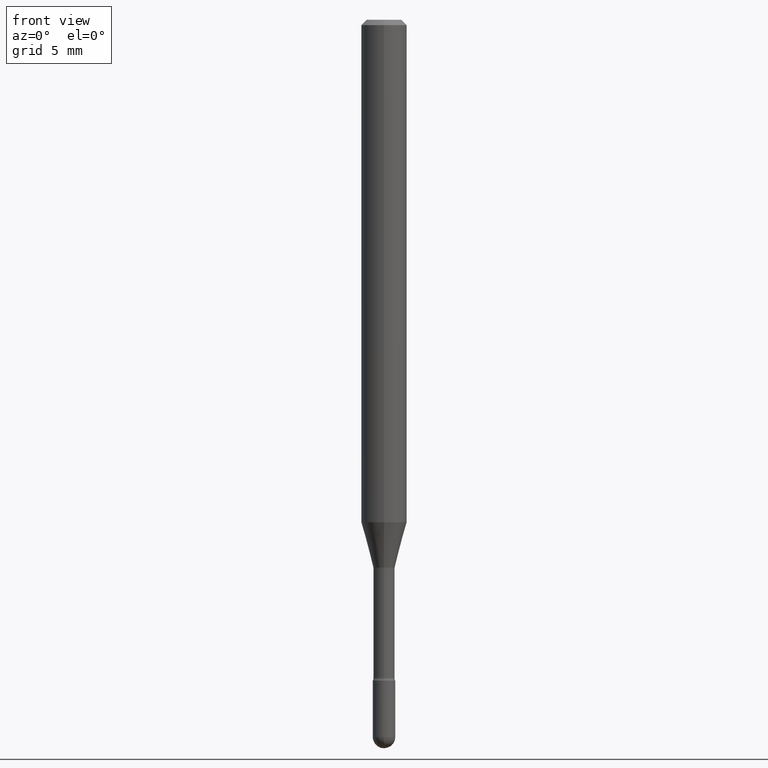
[diagram: clean part render]
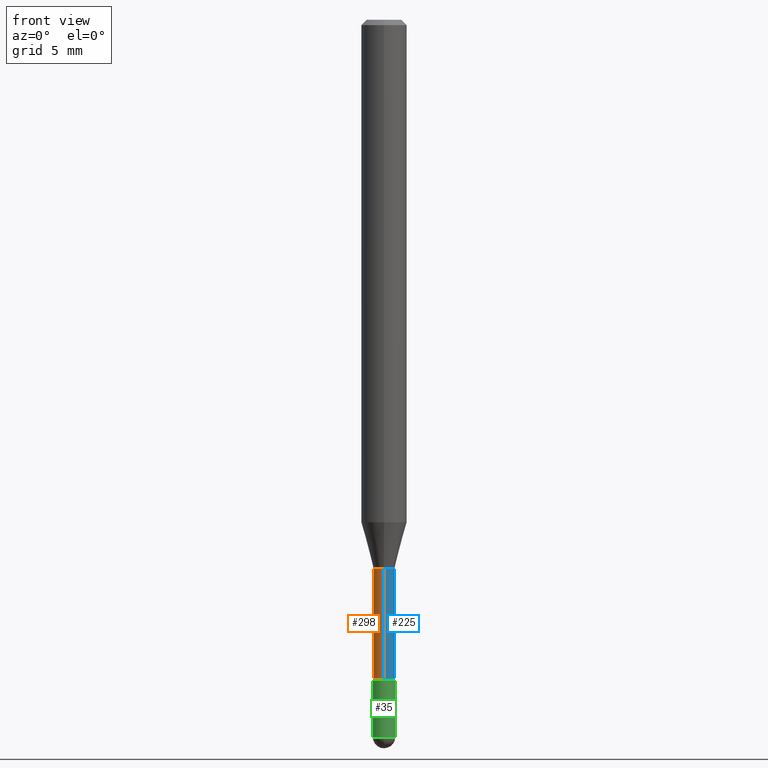
[diagram: same view with three faces highlighted in distinct colors, each labeled with its STEP entity id]
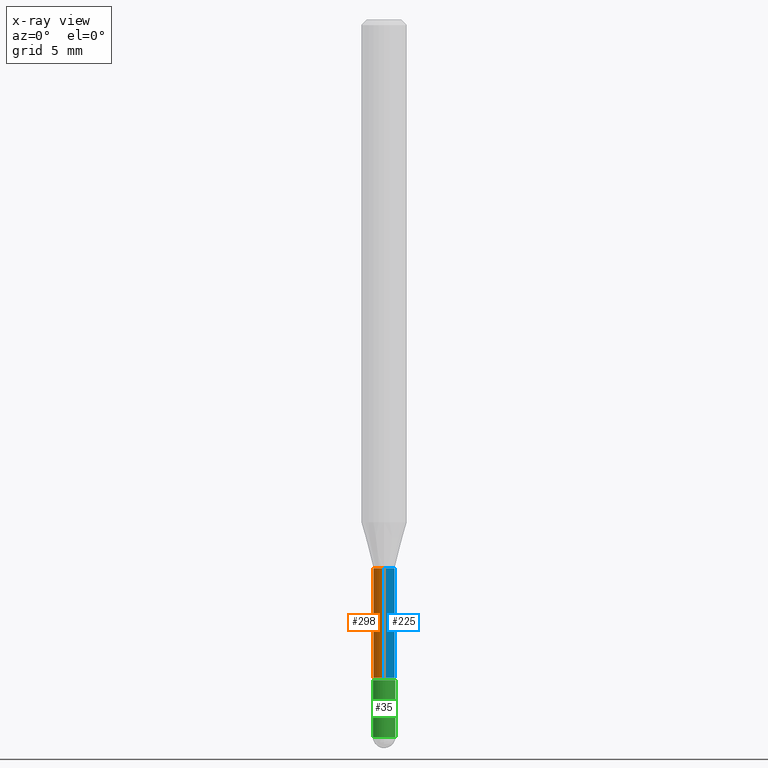
[diagram: x-ray of the same camera — body ghosted, the three highlighted faces saturated]
A machine part, front view with three faces highlighted in distinct colors.
The next image is the same camera in x-ray (body ghosted, the three faces saturated) — at least one of them is partly hidden behind the body in this view.
Their STEP definitions:

[orange] entity #298 — the highlighted cylindrical surface (edge-blend (fillet) strip) has radius 0.7404 mm, axis along (-0, 0, 1).
#6 = FACE_OUTER_BOUND ( 'NONE', #143, .T. ) ;
#8 = AXIS2_PLACEMENT_3D ( 'NONE', #379, #525, #290 ) ;
#17 = LINE ( 'NONE', #230, #24 ) ;
#24 = VECTOR ( 'NONE', #356, 39.37007874015748143 ) ;
#42 = CIRCLE ( 'NONE', #8, 0.02914999999999999883 ) ;
#45 = DIRECTION ( 'NONE',  ( -6.982962677686266711E-15, -1.000000000000000000, 0.000000000000000000 ) ) ;
#54 = CARTESIAN_POINT ( 'NONE',  ( -2.035533620545178324E-16, -0.02915000000000525851, -1.505974787463811193 ) ) ;
#79 = DIRECTION ( 'NONE',  ( -2.445449554586822988E-29, 3.491508908227663846E-15, 1.000000000000000000 ) ) ;
#106 = VERTEX_POINT ( 'NONE', #294 ) ;
#143 = EDGE_LOOP ( 'NONE', ( #168, #463, #365, #284 ) ) ;
#144 = EDGE_CURVE ( 'NONE', #348, #344, #42, .T. ) ;
#150 = CARTESIAN_POINT ( 'NONE',  ( -2.035533620545106341E-16, -0.02915000000000633404, -1.806783525791634704 ) ) ;
#159 = DIRECTION ( 'NONE',  ( -2.445449554586822708E-29, 3.491508908227663846E-15, 1.000000000000000000 ) ) ;
#162 = CARTESIAN_POINT ( 'NONE',  ( -1.169113584055446105E-44, 1.669184350826100908E-30, 4.780733988912460139E-16 ) ) ;
#168 = ORIENTED_EDGE ( 'NONE', *, *, #507, .F. ) ;
#182 = CARTESIAN_POINT ( 'NONE',  ( 2.071232074741134460E-16, 0.02914999999999473568, -1.505974787463811193 ) ) ;
#219 = EDGE_CURVE ( 'NONE', #106, #506, #471, .T. ) ;
#230 = CARTESIAN_POINT ( 'NONE',  ( -2.035533620545547363E-16, -0.02915000000000001271, 5.798508835660825861E-16 ) ) ;
#257 = CARTESIAN_POINT ( 'NONE',  ( 4.418397968381962600E-29, -6.308400775540479740E-15, -1.806783525791634704 ) ) ;
#282 = CARTESIAN_POINT ( 'NONE',  ( 2.071232074740692452E-16, 0.02915000000000001271, 3.762959142164096390E-16 ) ) ;
#284 = ORIENTED_EDGE ( 'NONE', *, *, #144, .F. ) ;
#290 = DIRECTION ( 'NONE',  ( -6.982962677686265922E-15, -1.000000000000000000, 0.000000000000000000 ) ) ;
#294 = CARTESIAN_POINT ( 'NONE',  ( 2.136957277798944871E-16, 0.02914999999999371566, -1.806783525791634704 ) ) ;
#298 = ADVANCED_FACE ( 'NONE', ( #6 ), #561, .T. ) ;
#344 = VERTEX_POINT ( 'NONE', #54 ) ;
#348 = VERTEX_POINT ( 'NONE', #182 ) ;
#356 = DIRECTION ( 'NONE',  ( -2.445449554586822708E-29, 3.491508908227663846E-15, 1.000000000000000000 ) ) ;
#365 = ORIENTED_EDGE ( 'NONE', *, *, #437, .T. ) ;
#379 = CARTESIAN_POINT ( 'NONE',  ( 3.682785373222362637E-29, -5.258124385996159682E-15, -1.505974787463811193 ) ) ;
#426 = DIRECTION ( 'NONE',  ( -6.982962677686265922E-15, -1.000000000000000000, 3.491508908227665819E-15 ) ) ;
#436 = DIRECTION ( 'NONE',  ( -2.445449554586822988E-29, 3.491508908227663846E-15, 1.000000000000000000 ) ) ;
#437 = EDGE_CURVE ( 'NONE', #506, #344, #17, .T. ) ;
#450 = AXIS2_PLACEMENT_3D ( 'NONE', #162, #79, #426 ) ;
#463 = ORIENTED_EDGE ( 'NONE', *, *, #219, .T. ) ;
#468 = LINE ( 'NONE', #282, #526 ) ;
#471 = CIRCLE ( 'NONE', #547, 0.02915000000000002311 ) ;
#506 = VERTEX_POINT ( 'NONE', #150 ) ;
#507 = EDGE_CURVE ( 'NONE', #106, #348, #468, .T. ) ;
#525 = DIRECTION ( 'NONE',  ( -2.445449554586822988E-29, 3.491508908227663846E-15, 1.000000000000000000 ) ) ;
#526 = VECTOR ( 'NONE', #159, 39.37007874015748143 ) ;
#547 = AXIS2_PLACEMENT_3D ( 'NONE', #257, #436, #45 ) ;
#561 = CYLINDRICAL_SURFACE ( 'NONE', #450, 0.02915000000000001271 ) ;

[blue] entity #225 — the highlighted cylindrical surface (edge-blend (fillet) strip) has radius 0.7404 mm, axis along (-0, 0, 1).
#2 = DIRECTION ( 'NONE',  ( -6.982962677686265922E-15, -1.000000000000000000, 3.491508908227665819E-15 ) ) ;
#12 = CARTESIAN_POINT ( 'NONE',  ( 3.682785373222362637E-29, -5.258124385996159682E-15, -1.505974787463811193 ) ) ;
#17 = LINE ( 'NONE', #230, #24 ) ;
#19 = ORIENTED_EDGE ( 'NONE', *, *, #437, .F. ) ;
#24 = VECTOR ( 'NONE', #356, 39.37007874015748143 ) ;
#39 = ORIENTED_EDGE ( 'NONE', *, *, #354, .F. ) ;
#54 = CARTESIAN_POINT ( 'NONE',  ( -2.035533620545178324E-16, -0.02915000000000525851, -1.505974787463811193 ) ) ;
#98 = AXIS2_PLACEMENT_3D ( 'NONE', #12, #222, #353 ) ;
#106 = VERTEX_POINT ( 'NONE', #294 ) ;
#115 = ORIENTED_EDGE ( 'NONE', *, *, #507, .T. ) ;
#119 = AXIS2_PLACEMENT_3D ( 'NONE', #448, #313, #400 ) ;
#150 = CARTESIAN_POINT ( 'NONE',  ( -2.035533620545106341E-16, -0.02915000000000633404, -1.806783525791634704 ) ) ;
#154 = ORIENTED_EDGE ( 'NONE', *, *, #362, .T. ) ;
#159 = DIRECTION ( 'NONE',  ( -2.445449554586822708E-29, 3.491508908227663846E-15, 1.000000000000000000 ) ) ;
#164 = AXIS2_PLACEMENT_3D ( 'NONE', #383, #563, #2 ) ;
#176 = CIRCLE ( 'NONE', #119, 0.02915000000000002311 ) ;
#182 = CARTESIAN_POINT ( 'NONE',  ( 2.071232074741134460E-16, 0.02914999999999473568, -1.505974787463811193 ) ) ;
#207 = FACE_OUTER_BOUND ( 'NONE', #495, .T. ) ;
#222 = DIRECTION ( 'NONE',  ( -2.445449554586822988E-29, 3.491508908227663846E-15, 1.000000000000000000 ) ) ;
#225 = ADVANCED_FACE ( 'NONE', ( #207 ), #293, .T. ) ;
#230 = CARTESIAN_POINT ( 'NONE',  ( -2.035533620545547363E-16, -0.02915000000000001271, 5.798508835660825861E-16 ) ) ;
#282 = CARTESIAN_POINT ( 'NONE',  ( 2.071232074740692452E-16, 0.02915000000000001271, 3.762959142164096390E-16 ) ) ;
#293 = CYLINDRICAL_SURFACE ( 'NONE', #164, 0.02915000000000001271 ) ;
#294 = CARTESIAN_POINT ( 'NONE',  ( 2.136957277798944871E-16, 0.02914999999999371566, -1.806783525791634704 ) ) ;
#313 = DIRECTION ( 'NONE',  ( -2.445449554586822988E-29, 3.491508908227663846E-15, 1.000000000000000000 ) ) ;
#344 = VERTEX_POINT ( 'NONE', #54 ) ;
#348 = VERTEX_POINT ( 'NONE', #182 ) ;
#353 = DIRECTION ( 'NONE',  ( -6.982962677686265922E-15, -1.000000000000000000, 0.000000000000000000 ) ) ;
#354 = EDGE_CURVE ( 'NONE', #344, #348, #397, .T. ) ;
#356 = DIRECTION ( 'NONE',  ( -2.445449554586822708E-29, 3.491508908227663846E-15, 1.000000000000000000 ) ) ;
#362 = EDGE_CURVE ( 'NONE', #506, #106, #176, .T. ) ;
#383 = CARTESIAN_POINT ( 'NONE',  ( -1.169113584055446105E-44, 1.669184350826100908E-30, 4.780733988912460139E-16 ) ) ;
#397 = CIRCLE ( 'NONE', #98, 0.02914999999999999883 ) ;
#400 = DIRECTION ( 'NONE',  ( -6.982962677686266711E-15, -1.000000000000000000, 0.000000000000000000 ) ) ;
#437 = EDGE_CURVE ( 'NONE', #506, #344, #17, .T. ) ;
#448 = CARTESIAN_POINT ( 'NONE',  ( 4.418397968381962600E-29, -6.308400775540479740E-15, -1.806783525791634704 ) ) ;
#468 = LINE ( 'NONE', #282, #526 ) ;
#495 = EDGE_LOOP ( 'NONE', ( #154, #115, #39, #19 ) ) ;
#506 = VERTEX_POINT ( 'NONE', #150 ) ;
#507 = EDGE_CURVE ( 'NONE', #106, #348, #468, .T. ) ;
#526 = VECTOR ( 'NONE', #159, 39.37007874015748143 ) ;
#563 = DIRECTION ( 'NONE',  ( -2.445449554586822988E-29, 3.491508908227663846E-15, 1.000000000000000000 ) ) ;

[green] entity #35 — the highlighted cylindrical surface (edge-blend (fillet) strip) has radius 0.7874 mm, axis along (-0, 0, 1).
#5 = DIRECTION ( 'NONE',  ( -2.445468806185136877E-29, 3.491481338843145188E-15, 1.000000000000000000 ) ) ;
#23 = VERTEX_POINT ( 'NONE', #145 ) ;
#35 = ADVANCED_FACE ( 'NONE', ( #304 ), #440, .T. ) ;
#49 = VECTOR ( 'NONE', #5, 39.37007874015748143 ) ;
#51 = DIRECTION ( 'NONE',  ( 1.000000000000000000, -6.982962677686266711E-15, 4.876176775795935232E-29 ) ) ;
#76 = CARTESIAN_POINT ( 'NONE',  ( -2.202682480855828862E-16, -0.03100000000000687969, -1.969000000000000306 ) ) ;
#83 = CIRCLE ( 'NONE', #406, 0.03099999999999999978 ) ;
#105 = CARTESIAN_POINT ( 'NONE',  ( 4.815128079378534076E-29, -6.874726756182154000E-15, -1.969000000000000306 ) ) ;
#108 = AXIS2_PLACEMENT_3D ( 'NONE', #299, #445, #51 ) ;
#114 = EDGE_CURVE ( 'NONE', #231, #456, #564, .T. ) ;
#127 = LINE ( 'NONE', #389, #49 ) ;
#128 = LINE ( 'NONE', #480, #461 ) ;
#133 = DIRECTION ( 'NONE',  ( 1.000000000000000000, -6.982962677686270655E-15, 0.000000000000000000 ) ) ;
#145 = CARTESIAN_POINT ( 'NONE',  ( -0.03099999999999999978, -6.383868704336178649E-15, -1.969000000000000306 ) ) ;
#151 = CARTESIAN_POINT ( 'NONE',  ( 0.03099999999999999978, -6.550018991669739348E-15, -1.813999999999999835 ) ) ;
#152 = EDGE_LOOP ( 'NONE', ( #202, #382, #360, #446, #444 ) ) ;
#175 = AXIS2_PLACEMENT_3D ( 'NONE', #105, #367, #196 ) ;
#196 = DIRECTION ( 'NONE',  ( 1.000000000000000000, -6.982962677686270655E-15, 0.000000000000000000 ) ) ;
#202 = ORIENTED_EDGE ( 'NONE', *, *, #288, .F. ) ;
#215 = EDGE_CURVE ( 'NONE', #261, #341, #502, .T. ) ;
#231 = VERTEX_POINT ( 'NONE', #76 ) ;
#261 = VERTEX_POINT ( 'NONE', #434 ) ;
#266 = DIRECTION ( 'NONE',  ( 1.000000000000000000, -6.982962677686270655E-15, 0.000000000000000000 ) ) ;
#288 = EDGE_CURVE ( 'NONE', #23, #261, #127, .T. ) ;
#299 = CARTESIAN_POINT ( 'NONE',  ( 0.000000000000000000, 0.000000000000000000, 0.000000000000000000 ) ) ;
#304 = FACE_OUTER_BOUND ( 'NONE', #152, .T. ) ;
#317 = AXIS2_PLACEMENT_3D ( 'NONE', #534, #439, #133 ) ;
#329 = EDGE_CURVE ( 'NONE', #456, #341, #128, .T. ) ;
#341 = VERTEX_POINT ( 'NONE', #151 ) ;
#351 = EDGE_CURVE ( 'NONE', #23, #231, #83, .T. ) ;
#359 = CARTESIAN_POINT ( 'NONE',  ( 0.03099999999999999978, -6.820608795430084234E-15, -1.969000000000000306 ) ) ;
#360 = ORIENTED_EDGE ( 'NONE', *, *, #114, .T. ) ;
#367 = DIRECTION ( 'NONE',  ( -2.445468806185136597E-29, 3.491481338843145583E-15, 1.000000000000000000 ) ) ;
#382 = ORIENTED_EDGE ( 'NONE', *, *, #351, .T. ) ;
#389 = CARTESIAN_POINT ( 'NONE',  ( -0.03099999999999999978, 2.202682480856310560E-16, -1.524869877979020612E-30 ) ) ;
#402 = DIRECTION ( 'NONE',  ( -2.445468806185136597E-29, 3.491481338843145583E-15, 1.000000000000000000 ) ) ;
#406 = AXIS2_PLACEMENT_3D ( 'NONE', #494, #402, #266 ) ;
#434 = CARTESIAN_POINT ( 'NONE',  ( -0.03099999999999999978, -6.383868704336178649E-15, -1.813999999999999835 ) ) ;
#439 = DIRECTION ( 'NONE',  ( -2.445468806185136597E-29, 3.491481338843145583E-15, 1.000000000000000000 ) ) ;
#440 = CYLINDRICAL_SURFACE ( 'NONE', #108, 0.03099999999999999978 ) ;
#444 = ORIENTED_EDGE ( 'NONE', *, *, #215, .F. ) ;
#445 = DIRECTION ( 'NONE',  ( -2.445468806185136597E-29, 3.491481338843145583E-15, 1.000000000000000000 ) ) ;
#446 = ORIENTED_EDGE ( 'NONE', *, *, #329, .T. ) ;
#456 = VERTEX_POINT ( 'NONE', #359 ) ;
#461 = VECTOR ( 'NONE', #552, 39.37007874015748143 ) ;
#480 = CARTESIAN_POINT ( 'NONE',  ( 0.03099999999999999978, -2.164718430082742572E-16, 1.511614800496739984E-30 ) ) ;
#494 = CARTESIAN_POINT ( 'NONE',  ( 4.815128079378534076E-29, -6.874726756182154000E-15, -1.969000000000000306 ) ) ;
#502 = CIRCLE ( 'NONE', #317, 0.03099999999999999978 ) ;
#534 = CARTESIAN_POINT ( 'NONE',  ( 4.436080414419837365E-29, -6.333547148661465016E-15, -1.813999999999999835 ) ) ;
#552 = DIRECTION ( 'NONE',  ( -2.445468806185136877E-29, 3.491481338843145188E-15, 1.000000000000000000 ) ) ;
#564 = CIRCLE ( 'NONE', #175, 0.03099999999999999978 ) ;